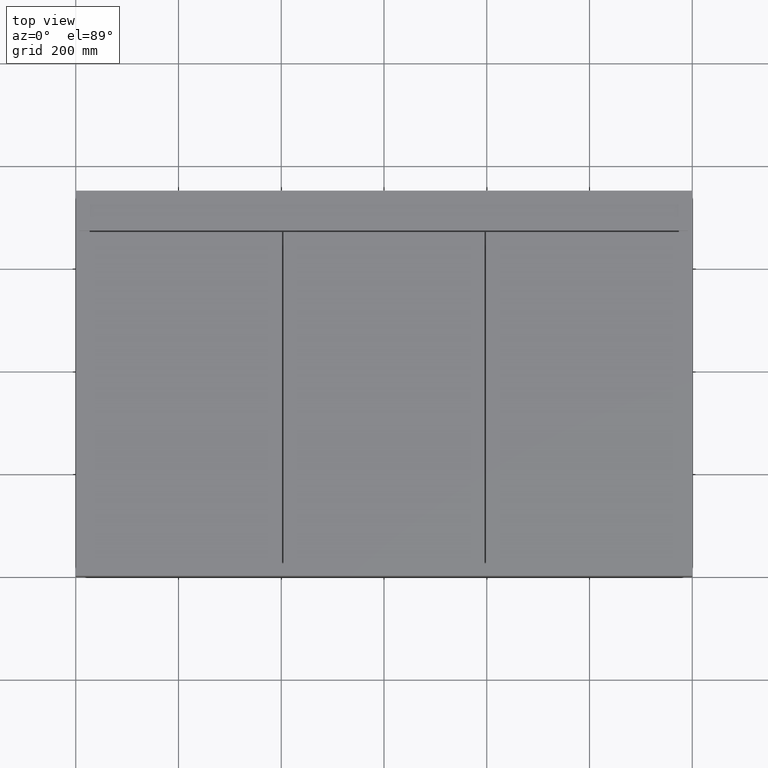
[diagram: clean part render]
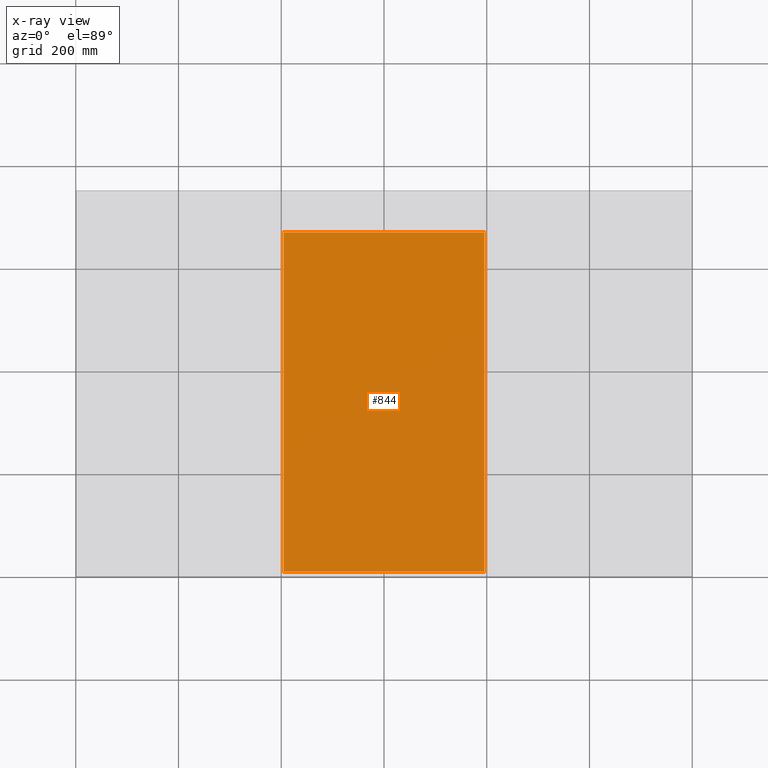
[diagram: x-ray — body ghosted, one internal face saturated and labeled with its STEP entity id]
A machine part, top view, then the same camera in x-ray: the body is ghosted and one INTERNAL B-rep face — a face not visible from any outside direction — is saturated and labeled: STEP entity #844.
In plain terms, the highlighted planar face has unit normal (0, -0, 1).
Its self-contained STEP definition (entity closure, byte-faithful):
#348 = VECTOR ( 'NONE', #13495, 1000.000000000000000 ) ;
#844 = ADVANCED_FACE ( 'NONE', ( #6295 ), #12022, .F. ) ;
#1329 = VECTOR ( 'NONE', #15616, 1000.000000000000000 ) ;
#2029 = LINE ( 'NONE', #7770, #348 ) ;
#2180 = CARTESIAN_POINT ( 'NONE',  ( 404.6599999999999113, 668.9999000000001388, -5.999999999999939604 ) ) ;
#2401 = EDGE_CURVE ( 'NONE', #12411, #3680, #2029, .T. ) ;
#3605 = EDGE_LOOP ( 'NONE', ( #8278, #10192, #6866, #8281 ) ) ;
#3680 = VERTEX_POINT ( 'NONE', #8054 ) ;
#4144 = LINE ( 'NONE', #9892, #1329 ) ;
#4874 = DIRECTION ( 'NONE',  ( 0.0000000000000000000, -0.0000000000000000000, 1.000000000000000000 ) ) ;
#4918 = LINE ( 'NONE', #10657, #13704 ) ;
#4970 = EDGE_CURVE ( 'NONE', #9815, #11493, #4144, .T. ) ;
#5314 = CARTESIAN_POINT ( 'NONE',  ( 404.6600000000000250, 8.000000000000007105, -5.999999999999939604 ) ) ;
#6295 = FACE_OUTER_BOUND ( 'NONE', #3605, .T. ) ;
#6844 = EDGE_CURVE ( 'NONE', #11493, #12411, #4918, .T. ) ;
#6866 = ORIENTED_EDGE ( 'NONE', *, *, #4970, .F. ) ;
#7770 = CARTESIAN_POINT ( 'NONE',  ( 404.6599999999999113, 668.9999000000001388, -5.999999999999939604 ) ) ;
#7994 = CARTESIAN_POINT ( 'NONE',  ( 795.3400000000000318, 8.000000000000007105, -5.999999999999939604 ) ) ;
#8054 = CARTESIAN_POINT ( 'NONE',  ( 404.6600000000000250, 8.000000000000007105, -5.999999999999939604 ) ) ;
#8278 = ORIENTED_EDGE ( 'NONE', *, *, #2401, .F. ) ;
#8281 = ORIENTED_EDGE ( 'NONE', *, *, #9029, .F. ) ;
#9029 = EDGE_CURVE ( 'NONE', #3680, #9815, #18186, .T. ) ;
#9815 = VERTEX_POINT ( 'NONE', #7994 ) ;
#9892 = CARTESIAN_POINT ( 'NONE',  ( 795.3399999999999181, 668.9999000000001388, -5.999999999999939604 ) ) ;
#10192 = ORIENTED_EDGE ( 'NONE', *, *, #6844, .F. ) ;
#10460 = VECTOR ( 'NONE', #11047, 1000.000000000000000 ) ;
#10615 = DIRECTION ( 'NONE',  ( 1.000000000000000000, 4.438106427900597321E-52, 0.0000000000000000000 ) ) ;
#10657 = CARTESIAN_POINT ( 'NONE',  ( 404.6599999999999113, 668.9999000000001388, -5.999999999999939604 ) ) ;
#11047 = DIRECTION ( 'NONE',  ( 1.000000000000000000, 4.438106427900597321E-52, 0.0000000000000000000 ) ) ;
#11493 = VERTEX_POINT ( 'NONE', #13708 ) ;
#12022 = PLANE ( 'NONE',  #16597 ) ;
#12411 = VERTEX_POINT ( 'NONE', #2180 ) ;
#13495 = DIRECTION ( 'NONE',  ( 1.679611486514833642E-16, -1.000000000000000000, 0.0000000000000000000 ) ) ;
#13704 = VECTOR ( 'NONE', #16392, 1000.000000000000000 ) ;
#13708 = CARTESIAN_POINT ( 'NONE',  ( 795.3399999999999181, 668.9999000000001388, -5.999999999999939604 ) ) ;
#15616 = DIRECTION ( 'NONE',  ( -1.679611486514833642E-16, 1.000000000000000000, 0.0000000000000000000 ) ) ;
#16392 = DIRECTION ( 'NONE',  ( -1.000000000000000000, -4.438106427900597321E-52, 0.0000000000000000000 ) ) ;
#16597 = AXIS2_PLACEMENT_3D ( 'NONE', #17744, #4874, #10615 ) ;
#17744 = CARTESIAN_POINT ( 'NONE',  ( 0.0000000000000000000, 0.0000000000000000000, -5.999999999999939604 ) ) ;
#18186 = LINE ( 'NONE', #5314, #10460 ) ;